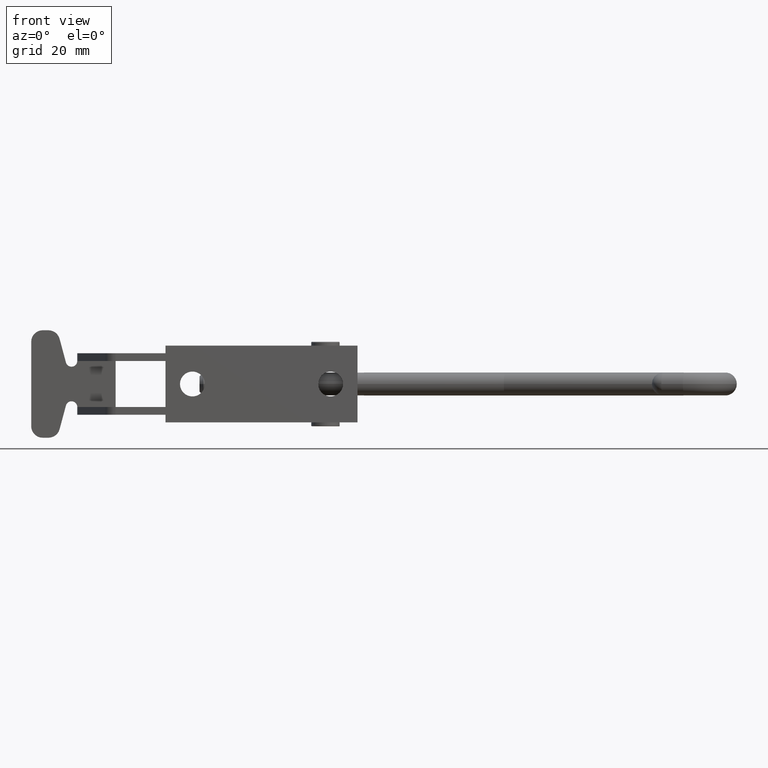
[diagram: clean part render]
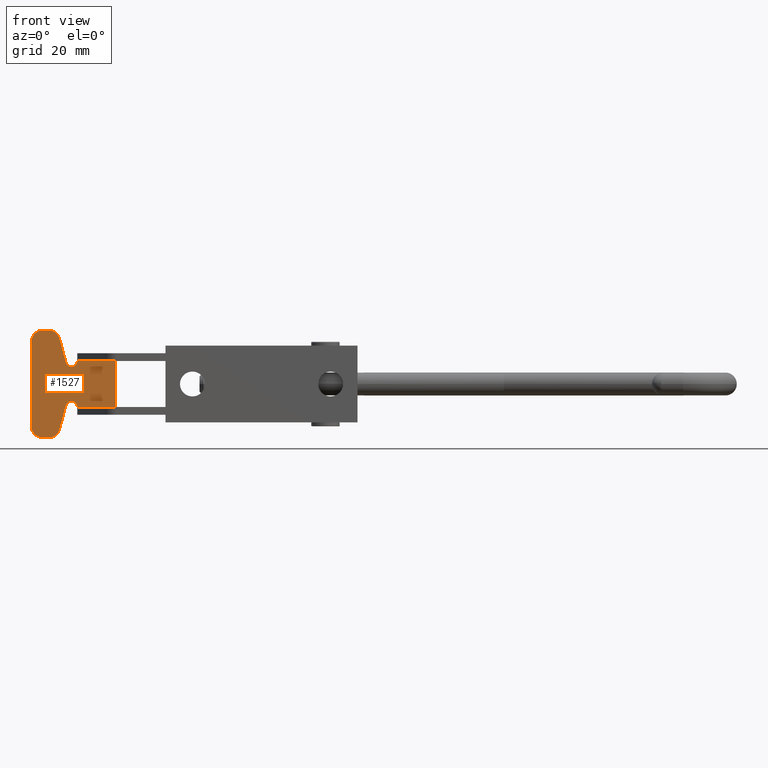
[diagram: same view with one face highlighted and labeled with its STEP entity id]
A machine part, front view. The second image highlights one B-rep face of the part: STEP entity #1527.
In plain terms, the highlighted planar face has unit normal (-0, -1, -0).
Its self-contained STEP definition (entity closure, byte-faithful):
#18 = DIRECTION ( 'NONE',  ( 0.2588190451025304500, -3.007047062844132900E-016, -0.9659258262890656500 ) ) ;
#88 = EDGE_LOOP ( 'NONE', ( #232, #723, #617, #1786, #2371, #2557, #3571, #4147, #3630, #1774, #4436, #4212, #4184, #102 ) ) ;
#102 = ORIENTED_EDGE ( 'NONE', *, *, #116, .T. ) ;
#116 = EDGE_CURVE ( 'NONE', #1262, #3374, #3203, .T. ) ;
#129 = CARTESIAN_POINT ( 'NONE',  ( -72.99999999999991500, 21.00000000000002500, -6.000000000000304600 ) ) ;
#141 = VECTOR ( 'NONE', #18, 1000.000000000000100 ) ;
#181 = EDGE_CURVE ( 'NONE', #459, #3800, #3421, .T. ) ;
#190 = CARTESIAN_POINT ( 'NONE',  ( -77.60071129513374900, 21.00000000000002800, 11.77645713530724900 ) ) ;
#193 = LINE ( 'NONE', #353, #141 ) ;
#202 = DIRECTION ( 'NONE',  ( 1.000000000000000000, -1.165734175856414200E-015, -5.581018263953779000E-016 ) ) ;
#209 = VERTEX_POINT ( 'NONE', #3056 ) ;
#232 = ORIENTED_EDGE ( 'NONE', *, *, #2604, .F. ) ;
#240 = EDGE_CURVE ( 'NONE', #3818, #2485, #193, .T. ) ;
#353 = CARTESIAN_POINT ( 'NONE',  ( -53.66076555607404700, 21.00000000000000000, -77.56863669330201100 ) ) ;
#399 = CARTESIAN_POINT ( 'NONE',  ( -77.60071129513367800, 21.00000000000002800, -11.77645713530785600 ) ) ;
#459 = VERTEX_POINT ( 'NONE', #3892 ) ;
#479 = VERTEX_POINT ( 'NONE', #2530 ) ;
#524 = CARTESIAN_POINT ( 'NONE',  ( -48.67761359179620900, 20.99999999999999300, 5.999999999999705100 ) ) ;
#612 = LINE ( 'NONE', #2592, #4206 ) ;
#617 = ORIENTED_EDGE ( 'NONE', *, *, #3132, .F. ) ;
#701 = DIRECTION ( 'NONE',  ( 5.581018263953780900E-016, -1.045111256635557800E-018, 1.000000000000000000 ) ) ;
#723 = ORIENTED_EDGE ( 'NONE', *, *, #4064, .F. ) ;
#755 = VECTOR ( 'NONE', #1688, 1000.000000000000000 ) ;
#843 = DIRECTION ( 'NONE',  ( 0.2588190451025214600, -3.027237061926610400E-016, 0.9659258262890679800 ) ) ;
#892 = DIRECTION ( 'NONE',  ( 1.000000000000000000, -1.156482317317870300E-015, -5.782411586589351700E-016 ) ) ;
#909 = DIRECTION ( 'NONE',  ( -1.221245327087672000E-015, -1.000000000000000000, -1.045111256634867400E-018 ) ) ;
#949 = CARTESIAN_POINT ( 'NONE',  ( -80.49848877400090400, 21.00000000000003200, -11.00000000000030400 ) ) ;
#979 = CARTESIAN_POINT ( 'NONE',  ( -74.49999999999991500, 21.00000000000002500, -6.000000000000303800 ) ) ;
#1056 = FACE_OUTER_BOUND ( 'NONE', #88, .T. ) ;
#1078 = AXIS2_PLACEMENT_3D ( 'NONE', #2150, #2139, #1881 ) ;
#1083 = VECTOR ( 'NONE', #843, 1000.000000000000100 ) ;
#1153 = CARTESIAN_POINT ( 'NONE',  ( -74.49999999999991500, 21.00000000000002500, 5.999999999999650100 ) ) ;
#1174 = CARTESIAN_POINT ( 'NONE',  ( -91.77746813043083300, 21.00000000000004600, -64.68483393118603400 ) ) ;
#1262 = VERTEX_POINT ( 'NONE', #399 ) ;
#1316 = VECTOR ( 'NONE', #3194, 1000.000000000000000 ) ;
#1326 = CARTESIAN_POINT ( 'NONE',  ( -48.67761359179599600, 20.99999999999999300, -14.00000000000032500 ) ) ;
#1337 = DIRECTION ( 'NONE',  ( 1.000000000000000000, -2.312964634635762000E-015, -5.782411586589405000E-016 ) ) ;
#1443 = AXIS2_PLACEMENT_3D ( 'NONE', #979, #3361, #1337 ) ;
#1499 = DIRECTION ( 'NONE',  ( 1.000000000000000000, -2.312964634635762000E-015, -5.782411586589405000E-016 ) ) ;
#1523 = VECTOR ( 'NONE', #701, 1000.000000000000000 ) ;
#1527 = ADVANCED_FACE ( 'NONE', ( #1056 ), #2420, .T. ) ;
#1540 = EDGE_CURVE ( 'NONE', #3084, #1262, #3673, .T. ) ;
#1565 = CARTESIAN_POINT ( 'NONE',  ( -80.49848877400090400, 21.00000000000003200, -14.00000000000030600 ) ) ;
#1659 = CIRCLE ( 'NONE', #2947, 2.999999999999960900 ) ;
#1688 = DIRECTION ( 'NONE',  ( 1.000000000000000000, -1.165734175856414200E-015, -5.581018263953779000E-016 ) ) ;
#1690 = EDGE_CURVE ( 'NONE', #209, #479, #1927, .T. ) ;
#1756 = CARTESIAN_POINT ( 'NONE',  ( -85.00000000000000000, 21.00000000000003900, -76.23340514871209500 ) ) ;
#1774 = ORIENTED_EDGE ( 'NONE', *, *, #2794, .F. ) ;
#1786 = ORIENTED_EDGE ( 'NONE', *, *, #4324, .F. ) ;
#1821 = AXIS2_PLACEMENT_3D ( 'NONE', #2836, #2293, #2193 ) ;
#1881 = DIRECTION ( 'NONE',  ( 1.000000000000000000, -1.156482317317870300E-015, -5.782411586589351700E-016 ) ) ;
#1927 = CIRCLE ( 'NONE', #1078, 3.000000000000002700 ) ;
#2035 = AXIS2_PLACEMENT_3D ( 'NONE', #949, #909, #892 ) ;
#2039 = AXIS2_PLACEMENT_3D ( 'NONE', #1153, #3525, #1499 ) ;
#2062 = VERTEX_POINT ( 'NONE', #3101 ) ;
#2072 = DIRECTION ( 'NONE',  ( -1.000000000000000000, 1.165734175856414200E-015, 5.581018263953779000E-016 ) ) ;
#2078 = CARTESIAN_POINT ( 'NONE',  ( -72.99999999999991500, 21.00000000000002500, 5.999999999999649200 ) ) ;
#2139 = DIRECTION ( 'NONE',  ( -1.221245327087672000E-015, -1.000000000000000000, -1.045111256634867400E-018 ) ) ;
#2150 = CARTESIAN_POINT ( 'NONE',  ( -81.99999999999998600, 21.00000000000003200, -11.00000000000030400 ) ) ;
#2193 = DIRECTION ( 'NONE',  ( 1.000000000000000000, -1.165734175856414200E-015, -5.581018263953779000E-016 ) ) ;
#2196 = EDGE_CURVE ( 'NONE', #3818, #3836, #1659, .T. ) ;
#2254 = CARTESIAN_POINT ( 'NONE',  ( -62.99999999999995700, 21.00000000000001100, -76.23340514871210900 ) ) ;
#2293 = DIRECTION ( 'NONE',  ( -1.165734175856414200E-015, -1.000000000000000000, -1.045111256634898400E-018 ) ) ;
#2371 = ORIENTED_EDGE ( 'NONE', *, *, #3003, .F. ) ;
#2389 = VERTEX_POINT ( 'NONE', #129 ) ;
#2420 = PLANE ( 'NONE',  #1821 ) ;
#2434 = LINE ( 'NONE', #1756, #1523 ) ;
#2485 = VERTEX_POINT ( 'NONE', #2589 ) ;
#2530 = CARTESIAN_POINT ( 'NONE',  ( -81.99999999999998600, 21.00000000000003200, -14.00000000000030600 ) ) ;
#2534 = CIRCLE ( 'NONE', #2039, 1.499999999999987600 ) ;
#2554 = VECTOR ( 'NONE', #2911, 1000.000000000000000 ) ;
#2557 = ORIENTED_EDGE ( 'NONE', *, *, #240, .F. ) ;
#2589 = CARTESIAN_POINT ( 'NONE',  ( -75.94888873943349900, 21.00000000000002500, 5.611771432345847200 ) ) ;
#2592 = CARTESIAN_POINT ( 'NONE',  ( -48.67761359179598200, 20.99999999999999300, 13.99999999999961300 ) ) ;
#2604 = EDGE_CURVE ( 'NONE', #2389, #3374, #2931, .T. ) ;
#2768 = VERTEX_POINT ( 'NONE', #2078 ) ;
#2794 = EDGE_CURVE ( 'NONE', #209, #3800, #2434, .T. ) ;
#2836 = CARTESIAN_POINT ( 'NONE',  ( -48.67761359179603200, 20.99999999999999300, -76.23340514871210900 ) ) ;
#2911 = DIRECTION ( 'NONE',  ( 1.000000000000000000, -1.165734175856414200E-015, 2.170637962035455300E-015 ) ) ;
#2931 = CIRCLE ( 'NONE', #1443, 1.499999999999987600 ) ;
#2947 = AXIS2_PLACEMENT_3D ( 'NONE', #4160, #4149, #4136 ) ;
#3003 = EDGE_CURVE ( 'NONE', #2485, #2768, #2534, .T. ) ;
#3047 = VERTEX_POINT ( 'NONE', #3897 ) ;
#3056 = CARTESIAN_POINT ( 'NONE',  ( -84.99999999999997200, 21.00000000000003900, -11.00000000000030200 ) ) ;
#3084 = VERTEX_POINT ( 'NONE', #1565 ) ;
#3085 = LINE ( 'NONE', #4134, #3932 ) ;
#3101 = CARTESIAN_POINT ( 'NONE',  ( -62.99999999999991500, 21.00000000000001400, -6.000000000000310000 ) ) ;
#3132 = EDGE_CURVE ( 'NONE', #3047, #2062, #3221, .T. ) ;
#3194 = DIRECTION ( 'NONE',  ( -5.581018263953780900E-016, 1.045111256635557800E-018, -1.000000000000000000 ) ) ;
#3203 = LINE ( 'NONE', #1174, #1083 ) ;
#3221 = LINE ( 'NONE', #2254, #1316 ) ;
#3295 = DIRECTION ( 'NONE',  ( 1.000000000000000000, -1.156482317317875700E-015, -5.782411586589378300E-016 ) ) ;
#3343 = EDGE_CURVE ( 'NONE', #479, #3084, #4454, .T. ) ;
#3345 = DIRECTION ( 'NONE',  ( -1.221245327087672000E-015, -1.000000000000000000, -1.045111256634867400E-018 ) ) ;
#3351 = LINE ( 'NONE', #524, #2554 ) ;
#3361 = DIRECTION ( 'NONE',  ( -1.221245327087672000E-015, -1.000000000000000000, -1.045111256634867400E-018 ) ) ;
#3374 = VERTEX_POINT ( 'NONE', #3378 ) ;
#3378 = CARTESIAN_POINT ( 'NONE',  ( -75.94888873943349900, 21.00000000000002500, -5.611771432346527500 ) ) ;
#3385 = CARTESIAN_POINT ( 'NONE',  ( -81.99999999999997200, 21.00000000000003200, 10.99999999999965700 ) ) ;
#3421 = CIRCLE ( 'NONE', #3652, 2.999999999999988900 ) ;
#3525 = DIRECTION ( 'NONE',  ( -1.221245327087672000E-015, -1.000000000000000000, -1.045111256634867400E-018 ) ) ;
#3571 = ORIENTED_EDGE ( 'NONE', *, *, #2196, .T. ) ;
#3609 = CARTESIAN_POINT ( 'NONE',  ( -84.99999999999997200, 21.00000000000003900, 10.99999999999965900 ) ) ;
#3630 = ORIENTED_EDGE ( 'NONE', *, *, #181, .T. ) ;
#3652 = AXIS2_PLACEMENT_3D ( 'NONE', #3385, #3345, #3295 ) ;
#3673 = CIRCLE ( 'NONE', #2035, 3.000000000000002700 ) ;
#3800 = VERTEX_POINT ( 'NONE', #3609 ) ;
#3818 = VERTEX_POINT ( 'NONE', #190 ) ;
#3836 = VERTEX_POINT ( 'NONE', #4355 ) ;
#3892 = CARTESIAN_POINT ( 'NONE',  ( -81.99999999999997200, 21.00000000000003200, 13.99999999999963200 ) ) ;
#3897 = CARTESIAN_POINT ( 'NONE',  ( -62.99999999999990100, 21.00000000000001400, 5.999999999999670500 ) ) ;
#3932 = VECTOR ( 'NONE', #2072, 1000.000000000000000 ) ;
#4064 = EDGE_CURVE ( 'NONE', #2062, #2389, #3085, .T. ) ;
#4134 = CARTESIAN_POINT ( 'NONE',  ( -48.67761359179598900, 20.99999999999999300, -6.000000000000318000 ) ) ;
#4136 = DIRECTION ( 'NONE',  ( 1.000000000000000000, -1.156482317317886500E-015, -5.782411586589432600E-016 ) ) ;
#4147 = ORIENTED_EDGE ( 'NONE', *, *, #4373, .F. ) ;
#4149 = DIRECTION ( 'NONE',  ( -1.221245327087672000E-015, -1.000000000000000000, -1.045111256634867400E-018 ) ) ;
#4160 = CARTESIAN_POINT ( 'NONE',  ( -80.49848877400093300, 21.00000000000003200, 10.99999999999968600 ) ) ;
#4184 = ORIENTED_EDGE ( 'NONE', *, *, #1540, .T. ) ;
#4206 = VECTOR ( 'NONE', #202, 1000.000000000000000 ) ;
#4212 = ORIENTED_EDGE ( 'NONE', *, *, #3343, .T. ) ;
#4324 = EDGE_CURVE ( 'NONE', #2768, #3047, #3351, .T. ) ;
#4355 = CARTESIAN_POINT ( 'NONE',  ( -80.49848877400093300, 21.00000000000003200, 13.99999999999963200 ) ) ;
#4373 = EDGE_CURVE ( 'NONE', #459, #3836, #612, .T. ) ;
#4436 = ORIENTED_EDGE ( 'NONE', *, *, #1690, .T. ) ;
#4454 = LINE ( 'NONE', #1326, #755 ) ;